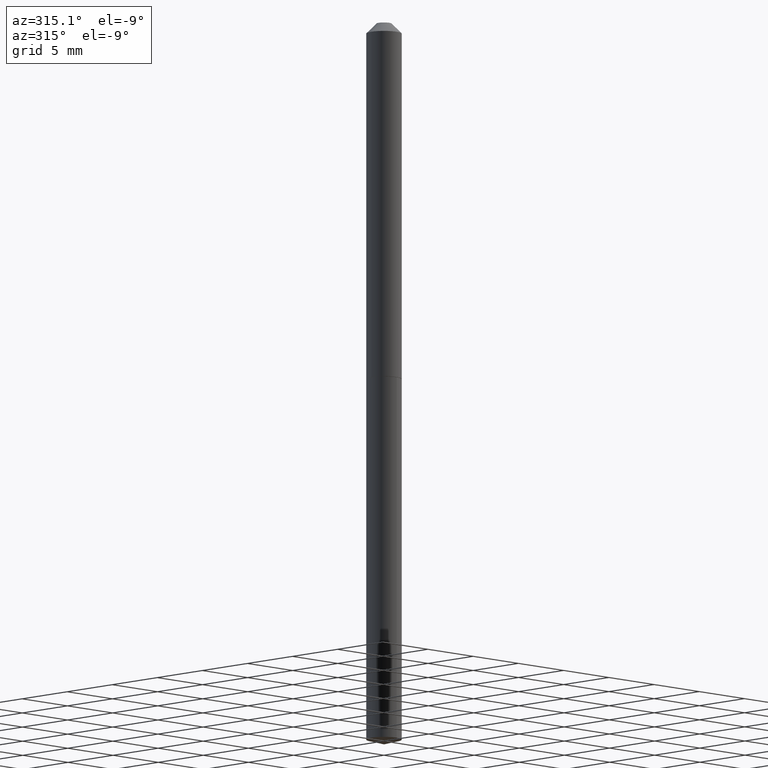
[diagram: clean part render]
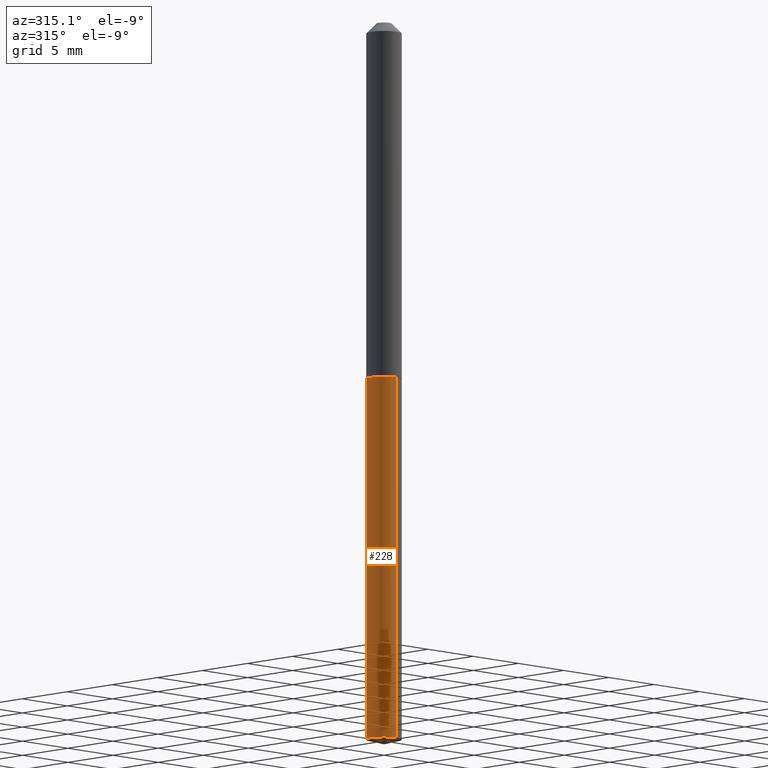
[diagram: same view with one face highlighted and labeled with its STEP entity id]
A machine part, auxiliary view. The second image highlights one B-rep face of the part: STEP entity #228.
In plain terms, the highlighted cylindrical surface (edge-blend (fillet) strip) has radius 1.397 mm, axis along (-0, 0, 1).
Its self-contained STEP definition (entity closure, byte-faithful):
#3 = CARTESIAN_POINT ( 'NONE',  ( 3.907985046680821720E-16, 0.05499999999999612837, -1.110000000000000098 ) ) ;
#5 = VERTEX_POINT ( 'NONE', #243 ) ;
#17 = AXIS2_PLACEMENT_3D ( 'NONE', #207, #386, #118 ) ;
#22 = EDGE_LOOP ( 'NONE', ( #247, #306, #65, #156 ) ) ;
#27 = DIRECTION ( 'NONE',  ( -6.982962677686266711E-15, -1.000000000000000000, 2.483498176058421144E-15 ) ) ;
#37 = VERTEX_POINT ( 'NONE', #310 ) ;
#52 = VECTOR ( 'NONE', #231, 39.37007874015748143 ) ;
#53 = DIRECTION ( 'NONE',  ( -2.446324664428035755E-29, 3.490255701126888222E-15, 1.000000000000000000 ) ) ;
#56 = EDGE_CURVE ( 'NONE', #366, #5, #191, .T. ) ;
#65 = ORIENTED_EDGE ( 'NONE', *, *, #56, .T. ) ;
#76 = CARTESIAN_POINT ( 'NONE',  ( 3.907985046681098807E-16, 0.05499999999999612837, -1.110000000000000098 ) ) ;
#78 = EDGE_CURVE ( 'NONE', #37, #366, #320, .T. ) ;
#87 = DIRECTION ( 'NONE',  ( -2.446324664428035755E-29, 3.490255701126888222E-15, 1.000000000000000000 ) ) ;
#111 = AXIS2_PLACEMENT_3D ( 'NONE', #378, #53, #381 ) ;
#118 = DIRECTION ( 'NONE',  ( -6.982962677686266711E-15, -1.000000000000000000, 2.483498176058421144E-15 ) ) ;
#121 = FACE_OUTER_BOUND ( 'NONE', #22, .T. ) ;
#138 = EDGE_CURVE ( 'NONE', #37, #318, #244, .T. ) ;
#155 = EDGE_CURVE ( 'NONE', #318, #5, #182, .T. ) ;
#156 = ORIENTED_EDGE ( 'NONE', *, *, #155, .F. ) ;
#182 = CIRCLE ( 'NONE', #17, 0.05500000000000000028 ) ;
#191 = LINE ( 'NONE', #308, #52 ) ;
#207 = CARTESIAN_POINT ( 'NONE',  ( 2.714470374865501353E-29, -3.875544286115891751E-15, -1.109999999999999876 ) ) ;
#228 = ADVANCED_FACE ( 'NONE', ( #121 ), #277, .T. ) ;
#231 = DIRECTION ( 'NONE',  ( -2.446324664428035755E-29, 3.490255701126888616E-15, 1.000000000000000000 ) ) ;
#243 = CARTESIAN_POINT ( 'NONE',  ( -3.840629472727175717E-16, -0.05500000000000387912, -1.109999999999999876 ) ) ;
#244 = LINE ( 'NONE', #3, #259 ) ;
#247 = ORIENTED_EDGE ( 'NONE', *, *, #138, .F. ) ;
#259 = VECTOR ( 'NONE', #328, 39.37007874015748143 ) ;
#277 = CYLINDRICAL_SURFACE ( 'NONE', #373, 0.05500000000000000028 ) ;
#280 = CARTESIAN_POINT ( 'NONE',  ( -3.840629472726899616E-16, -0.05500000000000779959, -2.235262794416287946 ) ) ;
#306 = ORIENTED_EDGE ( 'NONE', *, *, #78, .T. ) ;
#308 = CARTESIAN_POINT ( 'NONE',  ( -3.840629472727175717E-16, -0.05500000000000387912, -1.109999999999999876 ) ) ;
#310 = CARTESIAN_POINT ( 'NONE',  ( 3.907985046681096342E-16, 0.05499999999999219402, -2.235262794416288390 ) ) ;
#318 = VERTEX_POINT ( 'NONE', #76 ) ;
#320 = CIRCLE ( 'NONE', #111, 0.05500000000000000028 ) ;
#328 = DIRECTION ( 'NONE',  ( -2.446324664428035755E-29, 3.490255701126888616E-15, 1.000000000000000000 ) ) ;
#356 = CARTESIAN_POINT ( 'NONE',  ( 2.714470374865501353E-29, -3.875544286115891751E-15, -1.109999999999999876 ) ) ;
#366 = VERTEX_POINT ( 'NONE', #280 ) ;
#373 = AXIS2_PLACEMENT_3D ( 'NONE', #356, #87, #27 ) ;
#378 = CARTESIAN_POINT ( 'NONE',  ( 5.467228502809281415E-29, -7.802999169593315516E-15, -2.235262794416288390 ) ) ;
#381 = DIRECTION ( 'NONE',  ( -6.982962677686266711E-15, -1.000000000000000000, 4.966996352116842287E-15 ) ) ;
#386 = DIRECTION ( 'NONE',  ( -2.446324664428035755E-29, 3.490255701126888222E-15, 1.000000000000000000 ) ) ;